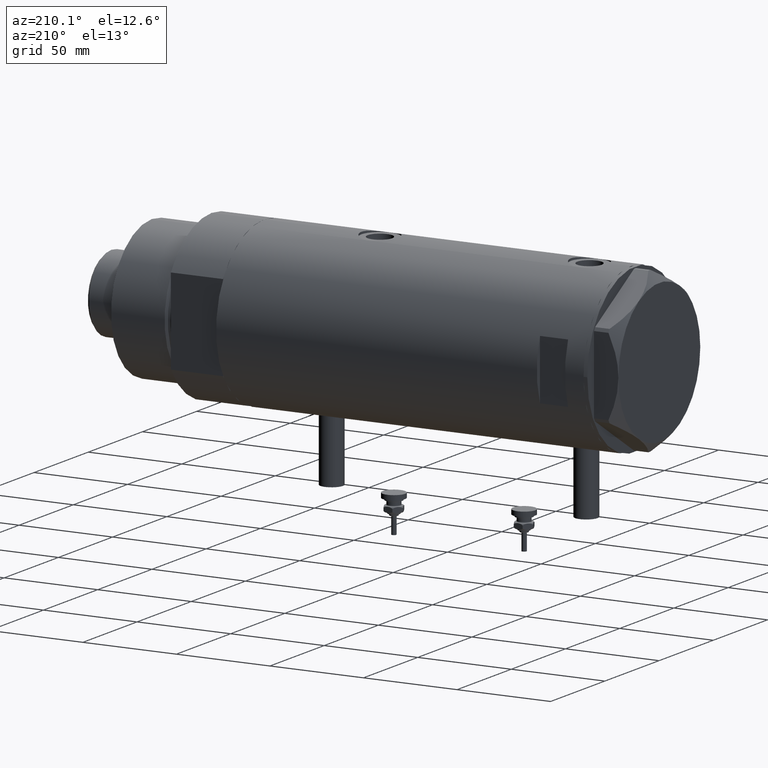
[diagram: clean part render]
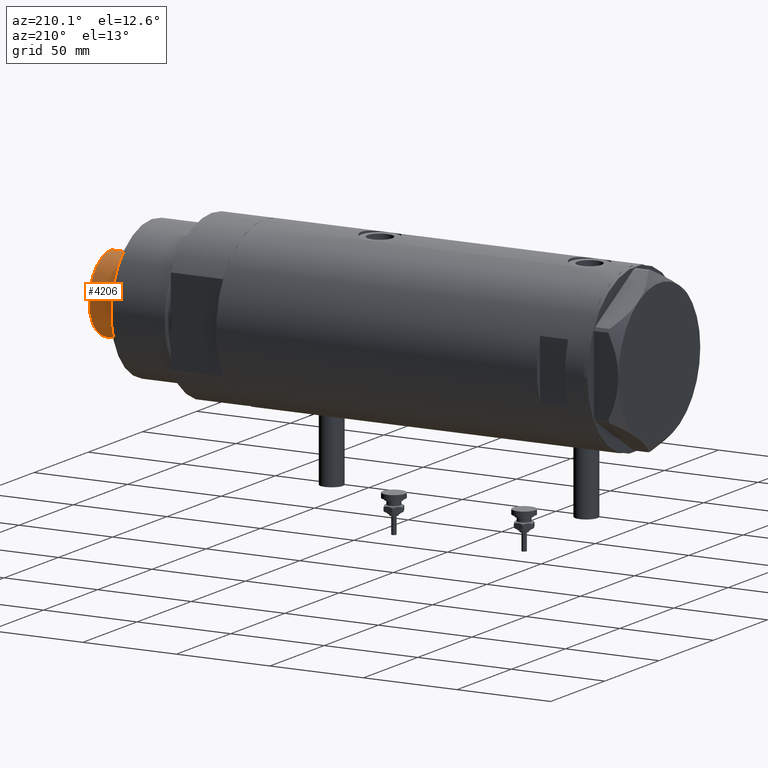
[diagram: same view with one face highlighted and labeled with its STEP entity id]
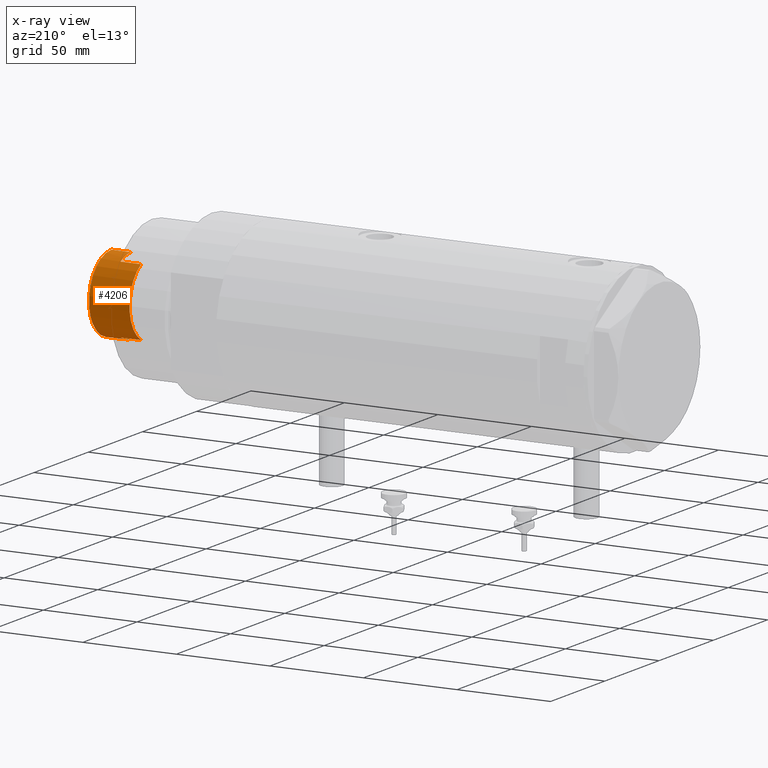
[diagram: x-ray of the same camera — body ghosted, the highlighted face saturated]
A machine part, auxiliary view. The second image highlights one B-rep face of the part: STEP entity #4206.
The next image is the same camera in x-ray: the body ghosted, the highlighted face saturated — about 0% of this face is hidden behind the body in this view.
In plain terms, the highlighted cylindrical surface (partial cylindrical patch) has radius 20.5 mm, axis along (-1, -0, 0).
Its self-contained STEP definition (entity closure, byte-faithful):
#14 = LINE ( 'NONE', #4687, #5372 ) ;
#81 = DIRECTION ( 'NONE',  ( 1.000000000000000000, 0.000000000000000000, 0.000000000000000000 ) ) ;
#165 = EDGE_LOOP ( 'NONE', ( #4055, #2259, #291, #2789, #5214, #1844, #4348, #3754 ) ) ;
#291 = ORIENTED_EDGE ( 'NONE', *, *, #3377, .T. ) ;
#367 = VERTEX_POINT ( 'NONE', #3705 ) ;
#389 = CARTESIAN_POINT ( 'NONE',  ( 20.50000000000000000, 2.510525938252074481E-15, 241.3000000000000114 ) ) ;
#450 = DIRECTION ( 'NONE',  ( 0.000000000000000000, 0.000000000000000000, -1.000000000000000000 ) ) ;
#470 = DIRECTION ( 'NONE',  ( -1.000000000000000000, 0.000000000000000000, 0.000000000000000000 ) ) ;
#475 = DIRECTION ( 'NONE',  ( 1.000000000000000000, 0.000000000000000000, 0.000000000000000000 ) ) ;
#517 = DIRECTION ( 'NONE',  ( 0.000000000000000000, 0.000000000000000000, 1.000000000000000000 ) ) ;
#540 = DIRECTION ( 'NONE',  ( -0.000000000000000000, -0.000000000000000000, -1.000000000000000000 ) ) ;
#649 = CARTESIAN_POINT ( 'NONE',  ( 17.97852886083842705, 9.849999999999997868, 230.3000000000000114 ) ) ;
#753 = DIRECTION ( 'NONE',  ( 1.000000000000000000, 0.000000000000000000, 0.000000000000000000 ) ) ;
#775 = VECTOR ( 'NONE', #4228, 1000.000000000000000 ) ;
#873 = CARTESIAN_POINT ( 'NONE',  ( -17.97852886083842705, 9.849999999999997868, 241.3000000000000114 ) ) ;
#939 = VERTEX_POINT ( 'NONE', #1022 ) ;
#952 = DIRECTION ( 'NONE',  ( -0.000000000000000000, -0.000000000000000000, -1.000000000000000000 ) ) ;
#992 = CARTESIAN_POINT ( 'NONE',  ( 0.000000000000000000, 0.000000000000000000, 251.9000000000001194 ) ) ;
#1022 = CARTESIAN_POINT ( 'NONE',  ( 20.50000000000000355, 2.510525938252074481E-15, 251.9000000000001194 ) ) ;
#1054 = VERTEX_POINT ( 'NONE', #649 ) ;
#1461 = VERTEX_POINT ( 'NONE', #5878 ) ;
#1744 = VECTOR ( 'NONE', #3259, 1000.000000000000000 ) ;
#1797 = EDGE_CURVE ( 'NONE', #367, #1461, #5168, .T. ) ;
#1844 = ORIENTED_EDGE ( 'NONE', *, *, #2828, .F. ) ;
#2259 = ORIENTED_EDGE ( 'NONE', *, *, #5777, .T. ) ;
#2295 = DIRECTION ( 'NONE',  ( -0.000000000000000000, -0.000000000000000000, -1.000000000000000000 ) ) ;
#2375 = DIRECTION ( 'NONE',  ( 1.000000000000000000, 0.000000000000000000, 0.000000000000000000 ) ) ;
#2381 = CARTESIAN_POINT ( 'NONE',  ( 17.97852886083842705, 9.849999999999997868, 241.3000000000000114 ) ) ;
#2393 = EDGE_CURVE ( 'NONE', #2434, #1461, #4067, .T. ) ;
#2419 = CARTESIAN_POINT ( 'NONE',  ( -17.97852886083842705, 9.849999999999965894, 230.3000000000000114 ) ) ;
#2434 = VERTEX_POINT ( 'NONE', #873 ) ;
#2516 = AXIS2_PLACEMENT_3D ( 'NONE', #4215, #2853, #475 ) ;
#2582 = VERTEX_POINT ( 'NONE', #4375 ) ;
#2614 = VERTEX_POINT ( 'NONE', #2419 ) ;
#2789 = ORIENTED_EDGE ( 'NONE', *, *, #2879, .T. ) ;
#2816 = CYLINDRICAL_SURFACE ( 'NONE', #3603, 20.50000000000000355 ) ;
#2828 = EDGE_CURVE ( 'NONE', #2434, #2614, #2897, .T. ) ;
#2847 = CARTESIAN_POINT ( 'NONE',  ( 0.000000000000000000, 0.000000000000000000, 241.3000000000000114 ) ) ;
#2853 = DIRECTION ( 'NONE',  ( 0.000000000000000000, 0.000000000000000000, 1.000000000000000000 ) ) ;
#2879 = EDGE_CURVE ( 'NONE', #2582, #1054, #3711, .T. ) ;
#2897 = LINE ( 'NONE', #5578, #1744 ) ;
#2923 = CIRCLE ( 'NONE', #5445, 20.49999999999998934 ) ;
#3259 = DIRECTION ( 'NONE',  ( -0.000000000000000000, -0.000000000000000000, -1.000000000000000000 ) ) ;
#3280 = EDGE_CURVE ( 'NONE', #1054, #2614, #2923, .T. ) ;
#3309 = CIRCLE ( 'NONE', #3401, 20.50000000000000000 ) ;
#3313 = CARTESIAN_POINT ( 'NONE',  ( 0.000000000000000000, 0.000000000000000000, 241.3000000000000114 ) ) ;
#3377 = EDGE_CURVE ( 'NONE', #3650, #2582, #3309, .T. ) ;
#3401 = AXIS2_PLACEMENT_3D ( 'NONE', #3313, #517, #2375 ) ;
#3603 = AXIS2_PLACEMENT_3D ( 'NONE', #2847, #952, #470 ) ;
#3650 = VERTEX_POINT ( 'NONE', #389 ) ;
#3705 = CARTESIAN_POINT ( 'NONE',  ( -20.50000000000000355, 0.000000000000000000, 251.9000000000001194 ) ) ;
#3711 = LINE ( 'NONE', #2381, #775 ) ;
#3754 = ORIENTED_EDGE ( 'NONE', *, *, #1797, .F. ) ;
#3775 = VECTOR ( 'NONE', #540, 1000.000000000000000 ) ;
#3797 = CIRCLE ( 'NONE', #4957, 20.50000000000000355 ) ;
#3801 = EDGE_CURVE ( 'NONE', #367, #939, #3797, .T. ) ;
#4055 = ORIENTED_EDGE ( 'NONE', *, *, #3801, .T. ) ;
#4067 = CIRCLE ( 'NONE', #2516, 20.50000000000000000 ) ;
#4206 = ADVANCED_FACE ( 'NONE', ( #5152 ), #2816, .T. ) ;
#4215 = CARTESIAN_POINT ( 'NONE',  ( 0.000000000000000000, 0.000000000000000000, 241.3000000000000114 ) ) ;
#4228 = DIRECTION ( 'NONE',  ( -0.000000000000000000, -0.000000000000000000, -1.000000000000000000 ) ) ;
#4348 = ORIENTED_EDGE ( 'NONE', *, *, #2393, .T. ) ;
#4375 = CARTESIAN_POINT ( 'NONE',  ( 17.97852886083842705, 9.849999999999997868, 241.3000000000000114 ) ) ;
#4586 = CARTESIAN_POINT ( 'NONE',  ( 0.000000000000000000, 0.000000000000000000, 230.3000000000000114 ) ) ;
#4687 = CARTESIAN_POINT ( 'NONE',  ( 20.50000000000000355, 2.510525938252074481E-15, 241.3000000000000114 ) ) ;
#4913 = DIRECTION ( 'NONE',  ( 0.000000000000000000, 0.000000000000000000, 1.000000000000000000 ) ) ;
#4957 = AXIS2_PLACEMENT_3D ( 'NONE', #992, #450, #81 ) ;
#5152 = FACE_OUTER_BOUND ( 'NONE', #165, .T. ) ;
#5168 = LINE ( 'NONE', #5600, #3775 ) ;
#5214 = ORIENTED_EDGE ( 'NONE', *, *, #3280, .T. ) ;
#5372 = VECTOR ( 'NONE', #2295, 1000.000000000000000 ) ;
#5445 = AXIS2_PLACEMENT_3D ( 'NONE', #4586, #4913, #753 ) ;
#5578 = CARTESIAN_POINT ( 'NONE',  ( -17.97852886083842705, 9.849999999999997868, 241.3000000000000114 ) ) ;
#5600 = CARTESIAN_POINT ( 'NONE',  ( -20.50000000000000355, 0.000000000000000000, 241.3000000000000114 ) ) ;
#5777 = EDGE_CURVE ( 'NONE', #939, #3650, #14, .T. ) ;
#5878 = CARTESIAN_POINT ( 'NONE',  ( -20.50000000000000000, 0.000000000000000000, 241.3000000000000114 ) ) ;